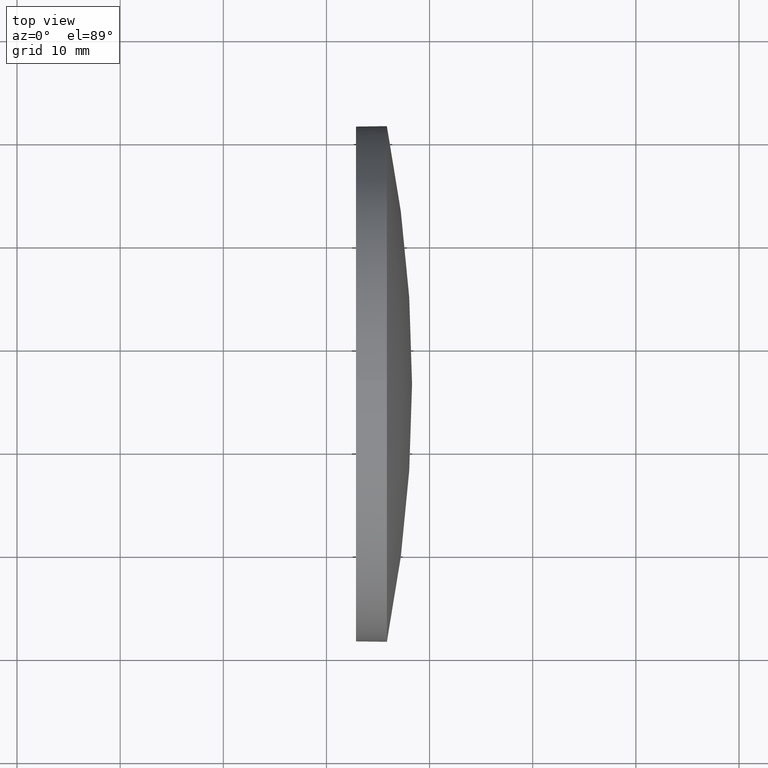
[diagram: clean part render]
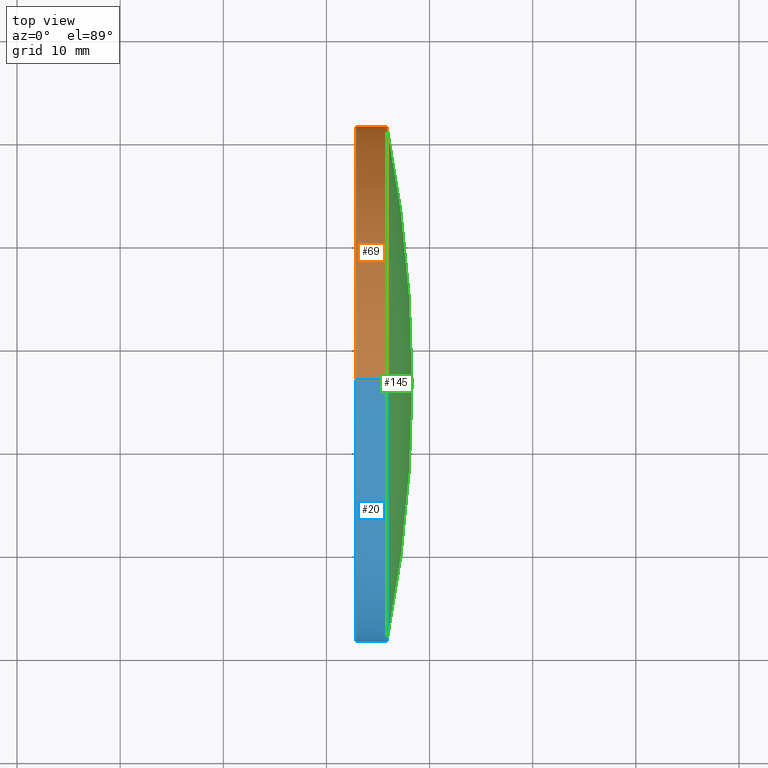
[diagram: same view with three faces highlighted in distinct colors, each labeled with its STEP entity id]
A machine part, top view with three faces highlighted in distinct colors.
Their STEP definitions:

[orange] entity #69 — the highlighted cylindrical surface (partial cylindrical patch) has radius 25 mm, axis along (-1, -0, -0).
#2 = CARTESIAN_POINT ( 'NONE',  ( 835.8614866702325800, 351.3556078819853500, 3.061616997868370800E-015 ) ) ;
#7 = EDGE_CURVE ( 'NONE', #85, #92, #79, .T. ) ;
#8 = DIRECTION ( 'NONE',  ( -1.000000000000000000, -0.0000000000000000000, -0.0000000000000000000 ) ) ;
#12 = FACE_OUTER_BOUND ( 'NONE', #51, .T. ) ;
#15 = ORIENTED_EDGE ( 'NONE', *, *, #17, .F. ) ;
#17 = EDGE_CURVE ( 'NONE', #169, #76, #48, .T. ) ;
#22 = CIRCLE ( 'NONE', #40, 24.99999999999996800 ) ;
#27 = CARTESIAN_POINT ( 'NONE',  ( 835.8614866702325800, 326.3556078819852900, 24.99999999999996800 ) ) ;
#37 = DIRECTION ( 'NONE',  ( -1.000000000000000000, -0.0000000000000000000, -0.0000000000000000000 ) ) ;
#39 = CARTESIAN_POINT ( 'NONE',  ( 823.4392472330453100, 326.3556078819852900, 24.99999999999996800 ) ) ;
#40 = AXIS2_PLACEMENT_3D ( 'NONE', #45, #44, #139 ) ;
#41 = CARTESIAN_POINT ( 'NONE',  ( 835.8614866702325800, 326.3556078819852900, 0.0000000000000000000 ) ) ;
#44 = DIRECTION ( 'NONE',  ( -1.000000000000000000, -0.0000000000000000000, -0.0000000000000000000 ) ) ;
#45 = CARTESIAN_POINT ( 'NONE',  ( 835.8614866702325800, 326.3556078819852900, 0.0000000000000000000 ) ) ;
#48 = CIRCLE ( 'NONE', #149, 24.99999999999996800 ) ;
#51 = EDGE_LOOP ( 'NONE', ( #119, #61, #15, #89, #54 ) ) ;
#54 = ORIENTED_EDGE ( 'NONE', *, *, #121, .T. ) ;
#57 = DIRECTION ( 'NONE',  ( -1.000000000000000000, -0.0000000000000000000, -0.0000000000000000000 ) ) ;
#59 = CARTESIAN_POINT ( 'NONE',  ( 823.4392472330453100, 326.3556078819852900, -24.99999999999996800 ) ) ;
#61 = ORIENTED_EDGE ( 'NONE', *, *, #144, .T. ) ;
#69 = ADVANCED_FACE ( 'NONE', ( #12 ), #122, .T. ) ;
#76 = VERTEX_POINT ( 'NONE', #146 ) ;
#77 = VERTEX_POINT ( 'NONE', #27 ) ;
#79 = CIRCLE ( 'NONE', #174, 24.99999999999996800 ) ;
#81 = DIRECTION ( 'NONE',  ( 0.0000000000000000000, 0.0000000000000000000, 1.000000000000000000 ) ) ;
#85 = VERTEX_POINT ( 'NONE', #2 ) ;
#89 = ORIENTED_EDGE ( 'NONE', *, *, #109, .F. ) ;
#92 = VERTEX_POINT ( 'NONE', #123 ) ;
#94 = DIRECTION ( 'NONE',  ( 0.0000000000000000000, 0.0000000000000000000, 1.000000000000000000 ) ) ;
#96 = DIRECTION ( 'NONE',  ( -1.000000000000000000, -0.0000000000000000000, -0.0000000000000000000 ) ) ;
#97 = CARTESIAN_POINT ( 'NONE',  ( 832.8614866702325800, 326.3556078819852900, 24.99999999999996800 ) ) ;
#103 = AXIS2_PLACEMENT_3D ( 'NONE', #105, #57, #94 ) ;
#105 = CARTESIAN_POINT ( 'NONE',  ( 823.4392472330453100, 326.3556078819852900, 0.0000000000000000000 ) ) ;
#109 = EDGE_CURVE ( 'NONE', #77, #169, #180, .T. ) ;
#119 = ORIENTED_EDGE ( 'NONE', *, *, #7, .T. ) ;
#121 = EDGE_CURVE ( 'NONE', #77, #85, #22, .T. ) ;
#122 = CYLINDRICAL_SURFACE ( 'NONE', #103, 24.99999999999996800 ) ;
#123 = CARTESIAN_POINT ( 'NONE',  ( 835.8614866702325800, 326.3556078819852900, -24.99999999999996800 ) ) ;
#130 = LINE ( 'NONE', #59, #163 ) ;
#139 = DIRECTION ( 'NONE',  ( 0.0000000000000000000, 0.0000000000000000000, 1.000000000000000000 ) ) ;
#142 = VECTOR ( 'NONE', #8, 1000.000000000000000 ) ;
#144 = EDGE_CURVE ( 'NONE', #92, #76, #130, .T. ) ;
#146 = CARTESIAN_POINT ( 'NONE',  ( 832.8614866702325800, 326.3556078819852900, -24.99999999999996800 ) ) ;
#149 = AXIS2_PLACEMENT_3D ( 'NONE', #177, #37, #150 ) ;
#150 = DIRECTION ( 'NONE',  ( 0.0000000000000000000, 0.0000000000000000000, 1.000000000000000000 ) ) ;
#163 = VECTOR ( 'NONE', #96, 1000.000000000000000 ) ;
#164 = DIRECTION ( 'NONE',  ( -1.000000000000000000, -0.0000000000000000000, -0.0000000000000000000 ) ) ;
#169 = VERTEX_POINT ( 'NONE', #97 ) ;
#174 = AXIS2_PLACEMENT_3D ( 'NONE', #41, #164, #81 ) ;
#177 = CARTESIAN_POINT ( 'NONE',  ( 832.8614866702325800, 326.3556078819852900, 0.0000000000000000000 ) ) ;
#180 = LINE ( 'NONE', #39, #142 ) ;

[blue] entity #20 — the highlighted cylindrical surface (partial cylindrical patch) has radius 25 mm, axis along (-1, -0, -0).
#1 = EDGE_LOOP ( 'NONE', ( #185, #53, #18, #87, #162 ) ) ;
#8 = DIRECTION ( 'NONE',  ( -1.000000000000000000, -0.0000000000000000000, -0.0000000000000000000 ) ) ;
#9 = CARTESIAN_POINT ( 'NONE',  ( 835.8614866702325800, 326.3556078819852900, 0.0000000000000000000 ) ) ;
#13 = EDGE_CURVE ( 'NONE', #76, #169, #143, .T. ) ;
#18 = ORIENTED_EDGE ( 'NONE', *, *, #156, .T. ) ;
#19 = AXIS2_PLACEMENT_3D ( 'NONE', #148, #175, #176 ) ;
#20 = ADVANCED_FACE ( 'NONE', ( #158 ), #106, .T. ) ;
#26 = DIRECTION ( 'NONE',  ( -1.000000000000000000, -0.0000000000000000000, -0.0000000000000000000 ) ) ;
#27 = CARTESIAN_POINT ( 'NONE',  ( 835.8614866702325800, 326.3556078819852900, 24.99999999999996800 ) ) ;
#28 = CARTESIAN_POINT ( 'NONE',  ( 835.8614866702325800, 301.3556078819854100, 0.0000000000000000000 ) ) ;
#29 = DIRECTION ( 'NONE',  ( -1.000000000000000000, -0.0000000000000000000, -0.0000000000000000000 ) ) ;
#39 = CARTESIAN_POINT ( 'NONE',  ( 823.4392472330453100, 326.3556078819852900, 24.99999999999996800 ) ) ;
#46 = DIRECTION ( 'NONE',  ( 0.0000000000000000000, 0.0000000000000000000, 1.000000000000000000 ) ) ;
#53 = ORIENTED_EDGE ( 'NONE', *, *, #167, .T. ) ;
#59 = CARTESIAN_POINT ( 'NONE',  ( 823.4392472330453100, 326.3556078819852900, -24.99999999999996800 ) ) ;
#72 = DIRECTION ( 'NONE',  ( -1.000000000000000000, -0.0000000000000000000, -0.0000000000000000000 ) ) ;
#73 = DIRECTION ( 'NONE',  ( 0.0000000000000000000, 0.0000000000000000000, 1.000000000000000000 ) ) ;
#76 = VERTEX_POINT ( 'NONE', #146 ) ;
#77 = VERTEX_POINT ( 'NONE', #27 ) ;
#78 = AXIS2_PLACEMENT_3D ( 'NONE', #152, #26, #166 ) ;
#87 = ORIENTED_EDGE ( 'NONE', *, *, #109, .T. ) ;
#92 = VERTEX_POINT ( 'NONE', #123 ) ;
#96 = DIRECTION ( 'NONE',  ( -1.000000000000000000, -0.0000000000000000000, -0.0000000000000000000 ) ) ;
#97 = CARTESIAN_POINT ( 'NONE',  ( 832.8614866702325800, 326.3556078819852900, 24.99999999999996800 ) ) ;
#102 = CIRCLE ( 'NONE', #161, 24.99999999999996800 ) ;
#106 = CYLINDRICAL_SURFACE ( 'NONE', #78, 24.99999999999996800 ) ;
#109 = EDGE_CURVE ( 'NONE', #77, #169, #180, .T. ) ;
#123 = CARTESIAN_POINT ( 'NONE',  ( 835.8614866702325800, 326.3556078819852900, -24.99999999999996800 ) ) ;
#129 = VERTEX_POINT ( 'NONE', #28 ) ;
#130 = LINE ( 'NONE', #59, #163 ) ;
#131 = AXIS2_PLACEMENT_3D ( 'NONE', #155, #29, #46 ) ;
#134 = CIRCLE ( 'NONE', #131, 24.99999999999996800 ) ;
#142 = VECTOR ( 'NONE', #8, 1000.000000000000000 ) ;
#143 = CIRCLE ( 'NONE', #19, 24.99999999999996800 ) ;
#144 = EDGE_CURVE ( 'NONE', #92, #76, #130, .T. ) ;
#146 = CARTESIAN_POINT ( 'NONE',  ( 832.8614866702325800, 326.3556078819852900, -24.99999999999996800 ) ) ;
#148 = CARTESIAN_POINT ( 'NONE',  ( 832.8614866702325800, 326.3556078819852900, 0.0000000000000000000 ) ) ;
#152 = CARTESIAN_POINT ( 'NONE',  ( 823.4392472330453100, 326.3556078819852900, 0.0000000000000000000 ) ) ;
#155 = CARTESIAN_POINT ( 'NONE',  ( 835.8614866702325800, 326.3556078819852900, 0.0000000000000000000 ) ) ;
#156 = EDGE_CURVE ( 'NONE', #129, #77, #134, .T. ) ;
#158 = FACE_OUTER_BOUND ( 'NONE', #1, .T. ) ;
#161 = AXIS2_PLACEMENT_3D ( 'NONE', #9, #72, #73 ) ;
#162 = ORIENTED_EDGE ( 'NONE', *, *, #13, .F. ) ;
#163 = VECTOR ( 'NONE', #96, 1000.000000000000000 ) ;
#166 = DIRECTION ( 'NONE',  ( 0.0000000000000000000, 0.0000000000000000000, 1.000000000000000000 ) ) ;
#167 = EDGE_CURVE ( 'NONE', #92, #129, #102, .T. ) ;
#169 = VERTEX_POINT ( 'NONE', #97 ) ;
#175 = DIRECTION ( 'NONE',  ( -1.000000000000000000, -0.0000000000000000000, -0.0000000000000000000 ) ) ;
#176 = DIRECTION ( 'NONE',  ( 0.0000000000000000000, 0.0000000000000000000, 1.000000000000000000 ) ) ;
#180 = LINE ( 'NONE', #39, #142 ) ;
#185 = ORIENTED_EDGE ( 'NONE', *, *, #144, .F. ) ;

[green] entity #145 — the highlighted spherical surface has radius 129.294 mm.
#2 = CARTESIAN_POINT ( 'NONE',  ( 835.8614866702325800, 351.3556078819853500, 3.061616997868370800E-015 ) ) ;
#21 = EDGE_LOOP ( 'NONE', ( #25, #117, #91, #38 ) ) ;
#22 = CIRCLE ( 'NONE', #40, 24.99999999999996800 ) ;
#25 = ORIENTED_EDGE ( 'NONE', *, *, #132, .F. ) ;
#27 = CARTESIAN_POINT ( 'NONE',  ( 835.8614866702325800, 326.3556078819852900, 24.99999999999996800 ) ) ;
#28 = CARTESIAN_POINT ( 'NONE',  ( 835.8614866702325800, 301.3556078819854100, 0.0000000000000000000 ) ) ;
#29 = DIRECTION ( 'NONE',  ( -1.000000000000000000, -0.0000000000000000000, -0.0000000000000000000 ) ) ;
#31 = CARTESIAN_POINT ( 'NONE',  ( 709.0077161784291800, 326.3556078819854100, 0.0000000000000000000 ) ) ;
#35 = AXIS2_PLACEMENT_3D ( 'NONE', #95, #181, #112 ) ;
#38 = ORIENTED_EDGE ( 'NONE', *, *, #156, .F. ) ;
#40 = AXIS2_PLACEMENT_3D ( 'NONE', #45, #44, #139 ) ;
#44 = DIRECTION ( 'NONE',  ( -1.000000000000000000, -0.0000000000000000000, -0.0000000000000000000 ) ) ;
#45 = CARTESIAN_POINT ( 'NONE',  ( 835.8614866702325800, 326.3556078819852900, 0.0000000000000000000 ) ) ;
#46 = DIRECTION ( 'NONE',  ( 0.0000000000000000000, 0.0000000000000000000, 1.000000000000000000 ) ) ;
#52 = AXIS2_PLACEMENT_3D ( 'NONE', #168, #178, #82 ) ;
#62 = SPHERICAL_SURFACE ( 'NONE', #141, 129.2937704918034600 ) ;
#77 = VERTEX_POINT ( 'NONE', #27 ) ;
#82 = DIRECTION ( 'NONE',  ( -1.000000000000000000, 0.0000000000000000000, 0.0000000000000000000 ) ) ;
#85 = VERTEX_POINT ( 'NONE', #2 ) ;
#91 = ORIENTED_EDGE ( 'NONE', *, *, #121, .F. ) ;
#95 = CARTESIAN_POINT ( 'NONE',  ( 709.0077161784291800, 326.3556078819854100, 0.0000000000000000000 ) ) ;
#99 = CIRCLE ( 'NONE', #52, 129.2937704918034600 ) ;
#112 = DIRECTION ( 'NONE',  ( 0.0000000000000000000, -1.000000000000000000, -1.224646799147353200E-016 ) ) ;
#115 = CIRCLE ( 'NONE', #35, 129.2937704918034600 ) ;
#116 = VERTEX_POINT ( 'NONE', #154 ) ;
#117 = ORIENTED_EDGE ( 'NONE', *, *, #184, .T. ) ;
#121 = EDGE_CURVE ( 'NONE', #77, #85, #22, .T. ) ;
#129 = VERTEX_POINT ( 'NONE', #28 ) ;
#131 = AXIS2_PLACEMENT_3D ( 'NONE', #155, #29, #46 ) ;
#132 = EDGE_CURVE ( 'NONE', #116, #129, #99, .T. ) ;
#134 = CIRCLE ( 'NONE', #131, 24.99999999999996800 ) ;
#139 = DIRECTION ( 'NONE',  ( 0.0000000000000000000, 0.0000000000000000000, 1.000000000000000000 ) ) ;
#141 = AXIS2_PLACEMENT_3D ( 'NONE', #31, #165, #151 ) ;
#145 = ADVANCED_FACE ( 'NONE', ( #147 ), #62, .T. ) ;
#147 = FACE_OUTER_BOUND ( 'NONE', #21, .T. ) ;
#151 = DIRECTION ( 'NONE',  ( 0.0000000000000000000, -1.000000000000000000, 0.0000000000000000000 ) ) ;
#154 = CARTESIAN_POINT ( 'NONE',  ( 838.3014866702326300, 326.3556078819854100, 0.0000000000000000000 ) ) ;
#155 = CARTESIAN_POINT ( 'NONE',  ( 835.8614866702325800, 326.3556078819852900, 0.0000000000000000000 ) ) ;
#156 = EDGE_CURVE ( 'NONE', #129, #77, #134, .T. ) ;
#165 = DIRECTION ( 'NONE',  ( 0.0000000000000000000, 0.0000000000000000000, 1.000000000000000000 ) ) ;
#168 = CARTESIAN_POINT ( 'NONE',  ( 709.0077161784291800, 326.3556078819854100, 0.0000000000000000000 ) ) ;
#178 = DIRECTION ( 'NONE',  ( 0.0000000000000000000, 0.0000000000000000000, -1.000000000000000000 ) ) ;
#181 = DIRECTION ( 'NONE',  ( 0.0000000000000000000, -1.224646799147353200E-016, 1.000000000000000000 ) ) ;
#184 = EDGE_CURVE ( 'NONE', #116, #85, #115, .T. ) ;